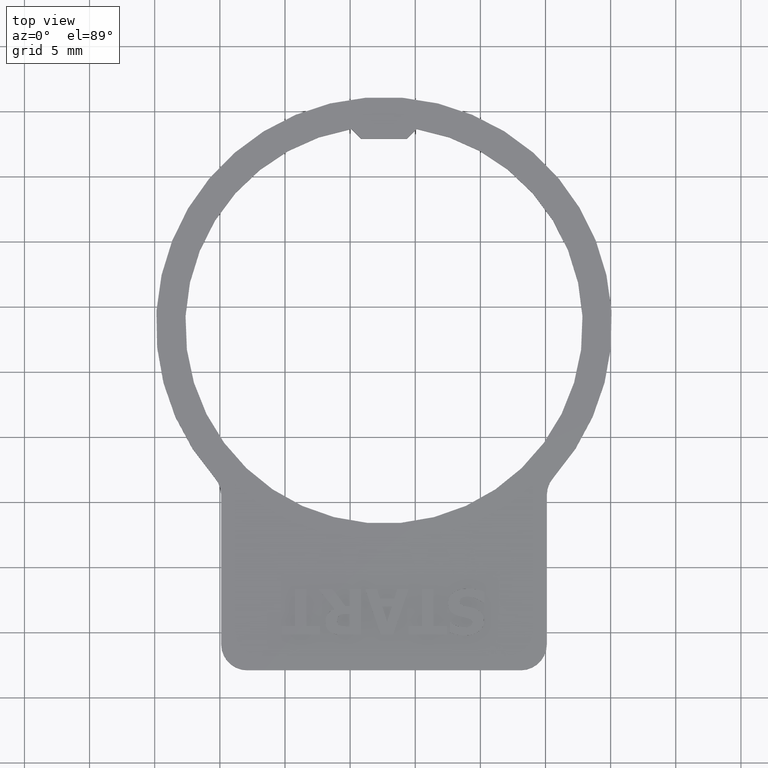
[diagram: clean part render]
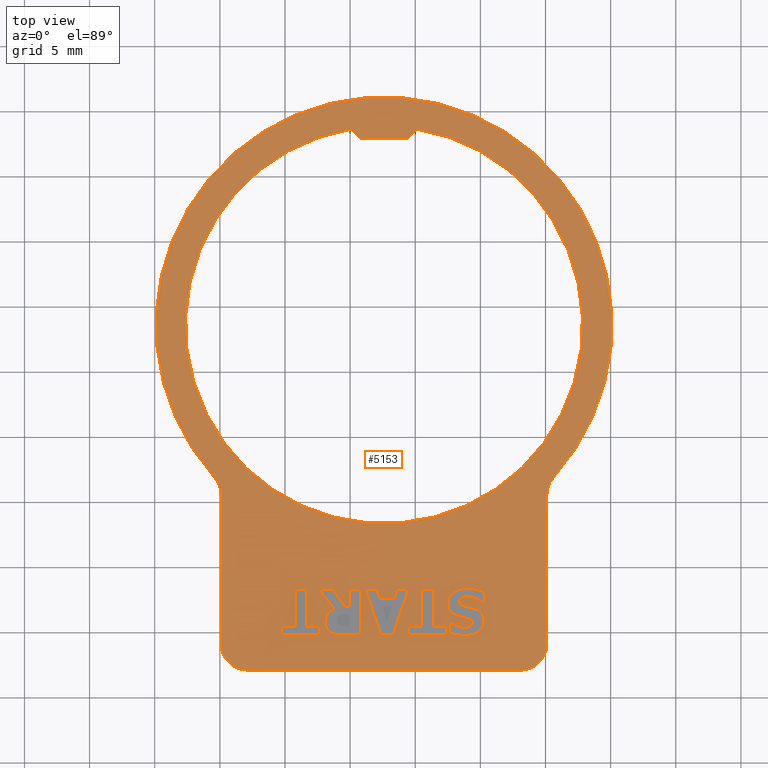
[diagram: same view with one face highlighted and labeled with its STEP entity id]
A machine part, top view. The second image highlights one B-rep face of the part: STEP entity #5153.
In plain terms, the highlighted planar face has unit normal (0, 0, 1).
Its self-contained STEP definition (entity closure, byte-faithful):
#2924=CARTESIAN_POINT('',(-9.185296175363206,-20.187380192846859,0.999999999999996));
#2925=VERTEX_POINT('',#2924);
#2932=CARTESIAN_POINT('',(-9.185296175363206,-16.687380252451501,0.999999999999996));
#2933=VERTEX_POINT('',#2932);
#2934=CARTESIAN_POINT('',(-9.185296175363206,-16.687380252451501,0.999999999999996));
#2935=DIRECTION('',(0.0,-1.0,0.0));
#2936=VECTOR('',#2935,3.499999940395359);
#2937=LINE('',#2934,#2936);
#2938=EDGE_CURVE('',#2933,#2925,#2937,.T.);
#2955=CARTESIAN_POINT('',(-10.592103282685809,-20.187380192846859,0.999999999999996));
#2956=VERTEX_POINT('',#2955);
#2963=CARTESIAN_POINT('',(-9.185296175363206,-20.187380192846859,0.999999999999996));
#2964=DIRECTION('',(-1.0,0.0,0.0));
#2965=VECTOR('',#2964,1.406807107322603);
#2966=LINE('',#2963,#2965);
#2967=EDGE_CURVE('',#2925,#2956,#2966,.T.);
#2983=CARTESIAN_POINT('',(-11.499720771281044,-20.000184085824088,0.999999999999996));
#2984=VERTEX_POINT('',#2983);
#2991=CARTESIAN_POINT('',(-10.592103282685809,-20.187380192846859,0.999999999999996));
#2992=CARTESIAN_POINT('',(-10.884242661827400,-20.187380192846859,0.999999999999996));
#2993=CARTESIAN_POINT('',(-11.315360968910134,-20.113636271898496,0.999999999999996));
#2994=CARTESIAN_POINT('',(-11.499720771281044,-20.000184085824088,0.999999999999996));
#2995=QUASI_UNIFORM_CURVE('',2,(#2991,#2992,#2993,#2994),.UNSPECIFIED.,.F.,.U.);
#2996=EDGE_CURVE('',#2956,#2984,#2995,.T.);
#3012=CARTESIAN_POINT('',(-11.908148641148895,-19.225872915866287,0.999999999999996));
#3013=VERTEX_POINT('',#3012);
#3020=CARTESIAN_POINT('',(-11.499720771281044,-20.000184085824088,0.999999999999988));
#3021=CARTESIAN_POINT('',(-11.686916878303810,-19.881059290445965,0.999999999999988));
#3022=CARTESIAN_POINT('',(-11.908148641148895,-19.509503381052294,0.999999999999988));
#3023=CARTESIAN_POINT('',(-11.908148641148895,-19.225872915866283,0.999999999999988));
#3024=QUASI_UNIFORM_CURVE('',2,(#3020,#3021,#3022,#3023),.UNSPECIFIED.,.F.,.U.);
#3025=EDGE_CURVE('',#2984,#3013,#3024,.T.);
#3041=CARTESIAN_POINT('',(-11.241617047961775,-18.176440194678051,0.999999999999996));
#3042=VERTEX_POINT('',#3041);
#3049=CARTESIAN_POINT('',(-11.908148641148895,-19.225872915866283,0.999999999999996));
#3050=CARTESIAN_POINT('',(-11.908148641148895,-18.825953959954013,0.999999999999996));
#3051=CARTESIAN_POINT('',(-11.545101645710805,-18.323928036574774,0.999999999999996));
#3052=CARTESIAN_POINT('',(-11.241617047961775,-18.176440194678051,0.999999999999996));
#3053=QUASI_UNIFORM_CURVE('',2,(#3049,#3050,#3051,#3052),.UNSPECIFIED.,.F.,.U.);
#3054=EDGE_CURVE('',#3013,#3042,#3053,.T.);
#3066=CARTESIAN_POINT('',(-12.418683478483711,-16.687380252451501,0.999999999999996));
#3067=VERTEX_POINT('',#3066);
#3074=CARTESIAN_POINT('',(-11.241617047961775,-18.176440194678051,0.999999999999996));
#3075=DIRECTION('',(-0.620128665966560,0.784500119596253,0.0));
#3076=VECTOR('',#3075,1.898100338076307);
#3077=LINE('',#3074,#3076);
#3078=EDGE_CURVE('',#3042,#3067,#3077,.T.);
#3156=CARTESIAN_POINT('',(-10.058878008136114,-16.687380252451501,0.999999999999996));
#3157=VERTEX_POINT('',#3156);
#3158=CARTESIAN_POINT('',(-10.058878008136114,-16.687380252451501,0.999999999999996));
#3159=DIRECTION('',(1.0,0.0,0.0));
#3160=VECTOR('',#3159,0.873581832772908);
#3161=LINE('',#3158,#3160);
#3162=EDGE_CURVE('',#3157,#2933,#3161,.T.);
#3180=CARTESIAN_POINT('',(-10.058878008136114,-17.972226259744122,0.999999999999996));
#3181=VERTEX_POINT('',#3180);
#3182=CARTESIAN_POINT('',(-10.058878008136114,-17.972226259744122,0.999999999999996));
#3183=DIRECTION('',(0.0,1.0,0.0));
#3184=VECTOR('',#3183,1.284846007292622);
#3185=LINE('',#3182,#3184);
#3186=EDGE_CURVE('',#3181,#3157,#3185,.T.);
#3204=CARTESIAN_POINT('',(-10.376544129144442,-17.972226259744122,0.999999999999996));
#3205=VERTEX_POINT('',#3204);
#3206=CARTESIAN_POINT('',(-10.376544129144442,-17.972226259744122,0.999999999999996));
#3207=DIRECTION('',(1.0,0.0,0.0));
#3208=VECTOR('',#3207,0.317666121008328);
#3209=LINE('',#3206,#3208);
#3210=EDGE_CURVE('',#3205,#3181,#3209,.T.);
#3228=CARTESIAN_POINT('',(-11.349396624732456,-16.687380252451501,0.999999999999996));
#3229=VERTEX_POINT('',#3228);
#3230=CARTESIAN_POINT('',(-11.349396624732456,-16.687380252451501,0.999999999999996));
#3231=DIRECTION('',(0.603654363102132,-0.797246141356457,0.0));
#3232=VECTOR('',#3231,1.611605175167795);
#3233=LINE('',#3230,#3232);
#3234=EDGE_CURVE('',#3229,#3205,#3233,.T.);
#3252=CARTESIAN_POINT('',(-12.418683478483711,-16.687380252451501,0.999999999999996));
#3253=DIRECTION('',(1.0,0.0,0.0));
#3254=VECTOR('',#3253,1.069286853751255);
#3255=LINE('',#3252,#3254);
#3256=EDGE_CURVE('',#3067,#3229,#3255,.T.);
#3340=CARTESIAN_POINT('',(-5.529299479115545,-19.520848599659736,0.999999999999996));
#3341=VERTEX_POINT('',#3340);
#3348=CARTESIAN_POINT('',(-5.529299479115545,-20.187380192846859,0.999999999999996));
#3349=VERTEX_POINT('',#3348);
#3350=CARTESIAN_POINT('',(-5.529299479115545,-20.187380192846859,0.999999999999996));
#3351=DIRECTION('',(0.0,1.0,0.0));
#3352=VECTOR('',#3351,0.666531593187123);
#3353=LINE('',#3350,#3352);
#3354=EDGE_CURVE('',#3349,#3341,#3353,.T.);
#3371=CARTESIAN_POINT('',(-4.494048281186611,-19.520848599659736,0.999999999999996));
#3372=VERTEX_POINT('',#3371);
#3379=CARTESIAN_POINT('',(-5.529299479115545,-19.520848599659736,0.999999999999996));
#3380=DIRECTION('',(1.0,0.0,0.0));
#3381=VECTOR('',#3380,1.035251197928933);
#3382=LINE('',#3379,#3381);
#3383=EDGE_CURVE('',#3341,#3372,#3382,.T.);
#3395=CARTESIAN_POINT('',(-4.494048281186611,-16.687380252451504,0.999999999999996));
#3396=VERTEX_POINT('',#3395);
#3403=CARTESIAN_POINT('',(-4.494048281186611,-19.520848599659736,0.999999999999996));
#3404=DIRECTION('',(0.0,1.0,0.0));
#3405=VECTOR('',#3404,2.833468347208232);
#3406=LINE('',#3403,#3405);
#3407=EDGE_CURVE('',#3372,#3396,#3406,.T.);
#3419=CARTESIAN_POINT('',(-3.614793839109982,-16.687380252451504,0.999999999999996));
#3420=VERTEX_POINT('',#3419);
#3427=CARTESIAN_POINT('',(-4.494048281186611,-16.687380252451504,0.999999999999996));
#3428=DIRECTION('',(1.0,0.0,0.0));
#3429=VECTOR('',#3428,0.879254442076629);
#3430=LINE('',#3427,#3429);
#3431=EDGE_CURVE('',#3396,#3420,#3430,.T.);
#3444=CARTESIAN_POINT('',(-2.579542641181049,-20.187380192846859,0.999999999999996));
#3445=VERTEX_POINT('',#3444);
#3446=CARTESIAN_POINT('',(-2.579542641181049,-20.187380192846859,0.999999999999996));
#3447=DIRECTION('',(-1.0,0.0,0.0));
#3448=VECTOR('',#3447,2.949756837934497);
#3449=LINE('',#3446,#3448);
#3450=EDGE_CURVE('',#3445,#3349,#3449,.T.);
#3468=CARTESIAN_POINT('',(-2.579542641181049,-19.520848599659736,0.999999999999996));
#3469=VERTEX_POINT('',#3468);
#3470=CARTESIAN_POINT('',(-2.579542641181049,-19.520848599659736,0.999999999999996));
#3471=DIRECTION('',(0.0,-1.0,0.0));
#3472=VECTOR('',#3471,0.666531593187123);
#3473=LINE('',#3470,#3472);
#3474=EDGE_CURVE('',#3469,#3445,#3473,.T.);
#3492=CARTESIAN_POINT('',(-3.614793839109983,-19.520848599659736,0.999999999999996));
#3493=VERTEX_POINT('',#3492);
#3494=CARTESIAN_POINT('',(-3.614793839109983,-19.520848599659736,0.999999999999996));
#3495=DIRECTION('',(1.0,0.0,0.0));
#3496=VECTOR('',#3495,1.035251197928934);
#3497=LINE('',#3494,#3496);
#3498=EDGE_CURVE('',#3493,#3469,#3497,.T.);
#3516=CARTESIAN_POINT('',(-3.614793839109982,-16.687380252451504,0.999999999999996));
#3517=DIRECTION('',(0.0,-1.0,0.0));
#3518=VECTOR('',#3517,2.833468347208232);
#3519=LINE('',#3516,#3518);
#3520=EDGE_CURVE('',#3420,#3493,#3519,.T.);
#3541=CARTESIAN_POINT('',(-6.695020691030045,-20.187380192846859,0.999999999999996));
#3542=VERTEX_POINT('',#3541);
#3549=CARTESIAN_POINT('',(-5.512281651204384,-16.687380252451504,0.999999999999996));
#3550=VERTEX_POINT('',#3549);
#3551=CARTESIAN_POINT('',(-5.512281651204384,-16.687380252451504,0.999999999999996));
#3552=DIRECTION('',(-0.320140459670987,-0.947370089290162,0.0));
#3553=VECTOR('',#3552,3.694437875928518);
#3554=LINE('',#3551,#3553);
#3555=EDGE_CURVE('',#3550,#3542,#3554,.T.);
#3579=CARTESIAN_POINT('',(-7.653691663358756,-20.187380192846859,0.999999999999996));
#3580=VERTEX_POINT('',#3579);
#3587=CARTESIAN_POINT('',(-6.695020691030045,-20.187380192846859,0.999999999999996));
#3588=DIRECTION('',(-1.0,0.0,0.0));
#3589=VECTOR('',#3588,0.958670972328711);
#3590=LINE('',#3587,#3589);
#3591=EDGE_CURVE('',#3542,#3580,#3590,.T.);
#3610=CARTESIAN_POINT('',(-8.836430703184414,-16.687380252451501,0.999999999999996));
#3611=VERTEX_POINT('',#3610);
#3618=CARTESIAN_POINT('',(-7.653691663358756,-20.187380192846859,0.999999999999996));
#3619=DIRECTION('',(-0.320140459670986,0.947370089290162,0.0));
#3620=VECTOR('',#3619,3.694437875928520);
#3621=LINE('',#3618,#3620);
#3622=EDGE_CURVE('',#3580,#3611,#3621,.T.);
#3641=CARTESIAN_POINT('',(-7.931649519241044,-16.687380252451504,0.999999999999996));
#3642=VERTEX_POINT('',#3641);
#3649=CARTESIAN_POINT('',(-8.836430703184414,-16.687380252451501,0.999999999999996));
#3650=DIRECTION('',(1.0,0.0,0.0));
#3651=VECTOR('',#3650,0.904781183943370);
#3652=LINE('',#3649,#3651);
#3653=EDGE_CURVE('',#3611,#3642,#3652,.T.);
#3713=CARTESIAN_POINT('',(-6.391536093281014,-16.687380252451504,0.999999999999996));
#3714=VERTEX_POINT('',#3713);
#3715=CARTESIAN_POINT('',(-6.391536093281014,-16.687380252451504,0.999999999999996));
#3716=DIRECTION('',(1.0,0.0,0.0));
#3717=VECTOR('',#3716,0.879254442076629);
#3718=LINE('',#3715,#3717);
#3719=EDGE_CURVE('',#3714,#3550,#3718,.T.);
#3744=CARTESIAN_POINT('',(-6.612767856126101,-17.402129024720246,0.999999999999996));
#3745=VERTEX_POINT('',#3744);
#3746=CARTESIAN_POINT('',(-6.612767856126101,-17.402129024720246,0.999999999999996));
#3747=DIRECTION('',(0.295683728071131,0.955285890691345,0.0));
#3748=VECTOR('',#3747,0.748204049943074);
#3749=LINE('',#3746,#3748);
#3750=EDGE_CURVE('',#3745,#3714,#3749,.T.);
#3775=CARTESIAN_POINT('',(-7.713254061047818,-17.402129024720246,0.999999999999996));
#3776=VERTEX_POINT('',#3775);
#3777=CARTESIAN_POINT('',(-7.713254061047818,-17.402129024720246,0.999999999999996));
#3778=DIRECTION('',(1.0,0.0,0.0));
#3779=VECTOR('',#3778,1.100486204921717);
#3780=LINE('',#3777,#3779);
#3781=EDGE_CURVE('',#3776,#3745,#3780,.T.);
#3804=CARTESIAN_POINT('',(-7.931649519241044,-16.687380252451504,0.999999999999996));
#3805=DIRECTION('',(0.292218535599020,-0.956351571051339,0.0));
#3806=VECTOR('',#3805,0.747370312240928);
#3807=LINE('',#3804,#3806);
#3808=EDGE_CURVE('',#3642,#3776,#3807,.T.);
#4152=CARTESIAN_POINT('',(-2.352638269032241,-20.014365609083391,0.999999999999996));
#4153=VERTEX_POINT('',#4152);
#4160=CARTESIAN_POINT('',(-1.178408143162162,-20.249778895187781,0.999999999999996));
#4161=VERTEX_POINT('',#4160);
#4162=CARTESIAN_POINT('',(-1.178408143162162,-20.249778895187781,0.999999999999988));
#4163=CARTESIAN_POINT('',(-1.490401654866773,-20.249778895187781,0.999999999999988));
#4164=CARTESIAN_POINT('',(-2.108716068972273,-20.122145185854077,0.999999999999988));
#4165=CARTESIAN_POINT('',(-2.352638269032241,-20.014365609083391,0.999999999999988));
#4166=QUASI_UNIFORM_CURVE('',2,(#4162,#4163,#4164,#4165),.UNSPECIFIED.,.F.,.U.);
#4167=EDGE_CURVE('',#4161,#4153,#4166,.T.);
#4184=CARTESIAN_POINT('',(-2.352638269032241,-19.214527697258845,0.999999999999996));
#4185=VERTEX_POINT('',#4184);
#4192=CARTESIAN_POINT('',(-2.352638269032241,-20.014365609083391,0.999999999999996));
#4193=DIRECTION('',(0.0,1.0,0.0));
#4194=VECTOR('',#4193,0.799837911824547);
#4195=LINE('',#4192,#4194);
#4196=EDGE_CURVE('',#4153,#4185,#4195,.T.);
#4208=CARTESIAN_POINT('',(-2.276058043432018,-19.214527697258845,0.999999999999996));
#4209=VERTEX_POINT('',#4208);
#4216=CARTESIAN_POINT('',(-2.352638269032241,-19.214527697258845,0.999999999999996));
#4217=DIRECTION('',(1.0,0.0,0.0));
#4218=VECTOR('',#4217,0.076580225600223);
#4219=LINE('',#4216,#4218);
#4220=EDGE_CURVE('',#4185,#4209,#4219,.T.);
#4236=CARTESIAN_POINT('',(-1.223789017591924,-19.611610348519260,0.999999999999996));
#4237=VERTEX_POINT('',#4236);
#4244=CARTESIAN_POINT('',(-2.276058043432018,-19.214527697258845,0.999999999999988));
#4245=CARTESIAN_POINT('',(-2.080353022453672,-19.381869671718590,0.999999999999988));
#4246=CARTESIAN_POINT('',(-1.518764701385373,-19.611610348519260,0.999999999999988));
#4247=CARTESIAN_POINT('',(-1.223789017591924,-19.611610348519260,0.999999999999988));
#4248=QUASI_UNIFORM_CURVE('',2,(#4244,#4245,#4246,#4247),.UNSPECIFIED.,.F.,.U.);
#4249=EDGE_CURVE('',#4209,#4237,#4248,.T.);
#4265=CARTESIAN_POINT('',(-0.823870061679651,-19.532193818267174,0.999999999999996));
#4266=VERTEX_POINT('',#4265);
#4273=CARTESIAN_POINT('',(-1.223789017591924,-19.611610348519260,0.999999999999988));
#4274=CARTESIAN_POINT('',(-1.107500526865660,-19.611610348519260,0.999999999999988));
#4275=CARTESIAN_POINT('',(-0.925977029146614,-19.577574692696938,0.999999999999988));
#4276=CARTESIAN_POINT('',(-0.823870061679651,-19.532193818267174,0.999999999999988));
#4277=QUASI_UNIFORM_CURVE('',2,(#4273,#4274,#4275,#4276),.UNSPECIFIED.,.F.,.U.);
#4278=EDGE_CURVE('',#4237,#4266,#4277,.T.);
#4294=CARTESIAN_POINT('',(-0.622492431397584,-19.257072267036747,0.999999999999996));
#4295=VERTEX_POINT('',#4294);
#4302=CARTESIAN_POINT('',(-0.823870061679651,-19.532193818267174,0.999999999999970));
#4303=CARTESIAN_POINT('',(-0.741617226775708,-19.495321857792995,0.999999999999970));
#4304=CARTESIAN_POINT('',(-0.622492431397584,-19.347834015896272,0.999999999999970));
#4305=CARTESIAN_POINT('',(-0.622492431397584,-19.257072267036747,0.999999999999970));
#4306=QUASI_UNIFORM_CURVE('',2,(#4302,#4303,#4304,#4305),.UNSPECIFIED.,.F.,.U.);
#4307=EDGE_CURVE('',#4266,#4295,#4306,.T.);
#4323=CARTESIAN_POINT('',(-1.084810089650779,-18.902534185554234,0.999999999999996));
#4324=VERTEX_POINT('',#4323);
#4331=CARTESIAN_POINT('',(-0.622492431397584,-19.257072267036747,0.999999999999988));
#4332=CARTESIAN_POINT('',(-0.622492431397584,-19.120929643747463,0.999999999999988));
#4333=CARTESIAN_POINT('',(-0.812524843072210,-18.964932887895159,0.999999999999988));
#4334=CARTESIAN_POINT('',(-1.084810089650779,-18.902534185554238,0.999999999999988));
#4335=QUASI_UNIFORM_CURVE('',2,(#4331,#4332,#4333,#4334),.UNSPECIFIED.,.F.,.U.);
#4336=EDGE_CURVE('',#4295,#4324,#4335,.T.);
#4352=CARTESIAN_POINT('',(-1.774032120052782,-18.721010687835186,0.999999999999996));
#4353=VERTEX_POINT('',#4352);
#4360=CARTESIAN_POINT('',(-1.084810089650779,-18.902534185554238,0.999999999999988));
#4361=CARTESIAN_POINT('',(-1.260660978066105,-18.862825920428193,0.999999999999988));
#4362=CARTESIAN_POINT('',(-1.586836013030016,-18.786245694827972,0.999999999999988));
#4363=CARTESIAN_POINT('',(-1.774032120052782,-18.721010687835189,0.999999999999988));
#4364=QUASI_UNIFORM_CURVE('',2,(#4360,#4361,#4362,#4363),.UNSPECIFIED.,.F.,.U.);
#4365=EDGE_CURVE('',#4324,#4353,#4364,.T.);
#4381=CARTESIAN_POINT('',(-2.491617196973386,-17.782193848069497,0.999999999999996));
#4382=VERTEX_POINT('',#4381);
#4389=CARTESIAN_POINT('',(-1.774032120052782,-18.721010687835189,0.999999999999988));
#4390=CARTESIAN_POINT('',(-2.137079115490874,-18.587704369197766,0.999999999999988));
#4391=CARTESIAN_POINT('',(-2.491617196973386,-18.145240843507590,0.999999999999988));
#4392=CARTESIAN_POINT('',(-2.491617196973386,-17.782193848069497,0.999999999999988));
#4393=QUASI_UNIFORM_CURVE('',2,(#4389,#4390,#4391,#4392),.UNSPECIFIED.,.F.,.U.);
#4394=EDGE_CURVE('',#4353,#4382,#4393,.T.);
#4410=CARTESIAN_POINT('',(-0.974194208228235,-16.624981550110579,0.999999999999996));
#4411=VERTEX_POINT('',#4410);
#4418=CARTESIAN_POINT('',(-2.491617196973386,-17.782193848069497,0.999999999999988));
#4419=CARTESIAN_POINT('',(-2.491617196973385,-17.260313792127242,0.999999999999988));
#4420=CARTESIAN_POINT('',(-1.671925152585818,-16.624981550110579,0.999999999999988));
#4421=CARTESIAN_POINT('',(-0.974194208228235,-16.624981550110579,0.999999999999988));
#4422=QUASI_UNIFORM_CURVE('',2,(#4418,#4419,#4420,#4421),.UNSPECIFIED.,.F.,.U.);
#4423=EDGE_CURVE('',#4382,#4411,#4422,.T.);
#4440=CARTESIAN_POINT('',(0.276616143242066,-19.149292690266066,0.999999999999996));
#4441=VERTEX_POINT('',#4440);
#4442=CARTESIAN_POINT('',(0.276616143242066,-19.149292690266066,0.999999999999970));
#4443=CARTESIAN_POINT('',(0.276616143242066,-19.639973395037860,0.999999999999970));
#4444=CARTESIAN_POINT('',(-0.554421119752942,-20.249778895187781,0.999999999999970));
#4445=CARTESIAN_POINT('',(-1.178408143162162,-20.249778895187781,0.999999999999970));
#4446=QUASI_UNIFORM_CURVE('',2,(#4442,#4443,#4444,#4445),.UNSPECIFIED.,.F.,.U.);
#4447=EDGE_CURVE('',#4441,#4161,#4446,.T.);
#4469=CARTESIAN_POINT('',(-0.480677198804579,-18.159422366766890,0.999999999999996));
#4470=VERTEX_POINT('',#4469);
#4471=CARTESIAN_POINT('',(-0.480677198804579,-18.159422366766890,0.999999999999988));
#4472=CARTESIAN_POINT('',(-0.075085633588586,-18.301237599359897,0.999999999999988));
#4473=CARTESIAN_POINT('',(0.276616143242066,-18.786245694827972,0.999999999999988));
#4474=CARTESIAN_POINT('',(0.276616143242066,-19.149292690266066,0.999999999999988));
#4475=QUASI_UNIFORM_CURVE('',2,(#4471,#4472,#4473,#4474),.UNSPECIFIED.,.F.,.U.);
#4476=EDGE_CURVE('',#4470,#4441,#4475,.T.);
#4498=CARTESIAN_POINT('',(-1.243643150154944,-17.966553650440403,0.999999999999996));
#4499=VERTEX_POINT('',#4498);
#4500=CARTESIAN_POINT('',(-1.243643150154944,-17.966553650440403,0.999999999999988));
#4501=CARTESIAN_POINT('',(-1.064955957087759,-18.014770829522028,0.999999999999988));
#4502=CARTESIAN_POINT('',(-0.659364391871765,-18.097023664425969,0.999999999999988));
#4503=CARTESIAN_POINT('',(-0.480677198804579,-18.159422366766890,0.999999999999988));
#4504=QUASI_UNIFORM_CURVE('',2,(#4500,#4501,#4502,#4503),.UNSPECIFIED.,.F.,.U.);
#4505=EDGE_CURVE('',#4499,#4470,#4504,.T.);
#4527=CARTESIAN_POINT('',(-1.592508622333736,-17.631869701520916,0.999999999999996));
#4528=VERTEX_POINT('',#4527);
#4529=CARTESIAN_POINT('',(-1.592508622333736,-17.631869701520912,0.999999999999979));
#4530=CARTESIAN_POINT('',(-1.592508622333736,-17.765176020158336,0.999999999999979));
#4531=CARTESIAN_POINT('',(-1.385458382747949,-17.929681689966223,0.999999999999979));
#4532=CARTESIAN_POINT('',(-1.243643150154944,-17.966553650440403,0.999999999999979));
#4533=QUASI_UNIFORM_CURVE('',2,(#4529,#4530,#4531,#4532),.UNSPECIFIED.,.F.,.U.);
#4534=EDGE_CURVE('',#4528,#4499,#4533,.T.);
#4556=CARTESIAN_POINT('',(-1.374113164140509,-17.331221408423747,0.999999999999996));
#4557=VERTEX_POINT('',#4556);
#4558=CARTESIAN_POINT('',(-1.374113164140508,-17.331221408423744,0.999999999999988));
#4559=CARTESIAN_POINT('',(-1.464874913000031,-17.370929673549785,0.999999999999988));
#4560=CARTESIAN_POINT('',(-1.592508622333736,-17.515581210794650,0.999999999999988));
#4561=CARTESIAN_POINT('',(-1.592508622333736,-17.631869701520912,0.999999999999988));
#4562=QUASI_UNIFORM_CURVE('',2,(#4558,#4559,#4560,#4561),.UNSPECIFIED.,.F.,.U.);
#4563=EDGE_CURVE('',#4557,#4528,#4562,.T.);
#4585=CARTESIAN_POINT('',(-0.977030512880095,-17.263150096779100,0.999999999999996));
#4586=VERTEX_POINT('',#4585);
#4587=CARTESIAN_POINT('',(-0.977030512880095,-17.263150096779100,0.999999999999988));
#4588=CARTESIAN_POINT('',(-1.053610738480318,-17.263150096779100,0.999999999999988));
#4589=CARTESIAN_POINT('',(-1.300369243192146,-17.297185752601422,0.999999999999988));
#4590=CARTESIAN_POINT('',(-1.374113164140508,-17.331221408423744,0.999999999999988));
#4591=QUASI_UNIFORM_CURVE('',2,(#4587,#4588,#4589,#4590),.UNSPECIFIED.,.F.,.U.);
#4592=EDGE_CURVE('',#4586,#4557,#4591,.T.);
#4614=CARTESIAN_POINT('',(0.217053745553004,-17.728304059684156,0.999999999999996));
#4615=VERTEX_POINT('',#4614);
#4616=CARTESIAN_POINT('',(0.217053745553004,-17.728304059684156,0.999999999999988));
#4617=CARTESIAN_POINT('',(-0.046722587069985,-17.504235992187208,0.999999999999988));
#4618=CARTESIAN_POINT('',(-0.679218524434786,-17.263150096779100,0.999999999999988));
#4619=CARTESIAN_POINT('',(-0.977030512880095,-17.263150096779100,0.999999999999988));
#4620=QUASI_UNIFORM_CURVE('',2,(#4616,#4617,#4618,#4619),.UNSPECIFIED.,.F.,.U.);
#4621=EDGE_CURVE('',#4615,#4586,#4620,.T.);
#4639=CARTESIAN_POINT('',(0.296470275805087,-17.728304059684156,0.999999999999996));
#4640=VERTEX_POINT('',#4639);
#4641=CARTESIAN_POINT('',(0.296470275805087,-17.728304059684156,0.999999999999996));
#4642=DIRECTION('',(-1.0,0.0,0.0));
#4643=VECTOR('',#4642,0.079416530252083);
#4644=LINE('',#4641,#4643);
#4645=EDGE_CURVE('',#4640,#4615,#4644,.T.);
#4663=CARTESIAN_POINT('',(0.296470275805087,-16.894430492037287,0.999999999999996));
#4664=VERTEX_POINT('',#4663);
#4665=CARTESIAN_POINT('',(0.296470275805087,-16.894430492037287,0.999999999999996));
#4666=DIRECTION('',(0.0,-1.0,0.0));
#4667=VECTOR('',#4666,0.833873567646869);
#4668=LINE('',#4665,#4667);
#4669=EDGE_CURVE('',#4664,#4640,#4668,.T.);
#4691=CARTESIAN_POINT('',(-0.974194208228235,-16.624981550110579,0.999999999999988));
#4692=CARTESIAN_POINT('',(-0.571438947664102,-16.624981550110579,0.999999999999988));
#4693=CARTESIAN_POINT('',(0.035530247833958,-16.780978305962886,0.999999999999988));
#4694=CARTESIAN_POINT('',(0.296470275805087,-16.894430492037287,0.999999999999988));
#4695=QUASI_UNIFORM_CURVE('',2,(#4691,#4692,#4693,#4694),.UNSPECIFIED.,.F.,.U.);
#4696=EDGE_CURVE('',#4411,#4664,#4695,.T.);
#4717=CARTESIAN_POINT('',(-13.351827708945683,-19.520848599659736,0.999999999999996));
#4718=VERTEX_POINT('',#4717);
#4725=CARTESIAN_POINT('',(-13.351827708945683,-16.687380252451501,0.999999999999996));
#4726=VERTEX_POINT('',#4725);
#4727=CARTESIAN_POINT('',(-13.351827708945683,-16.687380252451501,0.999999999999996));
#4728=DIRECTION('',(0.0,-1.0,0.0));
#4729=VECTOR('',#4728,2.833468347208235);
#4730=LINE('',#4727,#4729);
#4731=EDGE_CURVE('',#4726,#4718,#4730,.T.);
#4755=CARTESIAN_POINT('',(-12.316576511016750,-19.520848599659736,0.999999999999996));
#4756=VERTEX_POINT('',#4755);
#4763=CARTESIAN_POINT('',(-13.351827708945683,-19.520848599659736,0.999999999999996));
#4764=DIRECTION('',(1.0,0.0,0.0));
#4765=VECTOR('',#4764,1.035251197928933);
#4766=LINE('',#4763,#4765);
#4767=EDGE_CURVE('',#4718,#4756,#4766,.T.);
#4786=CARTESIAN_POINT('',(-12.316576511016750,-20.187380192846859,0.999999999999996));
#4787=VERTEX_POINT('',#4786);
#4794=CARTESIAN_POINT('',(-12.316576511016750,-19.520848599659736,0.999999999999996));
#4795=DIRECTION('',(0.0,-1.0,0.0));
#4796=VECTOR('',#4795,0.666531593187123);
#4797=LINE('',#4794,#4796);
#4798=EDGE_CURVE('',#4756,#4787,#4797,.T.);
#4817=CARTESIAN_POINT('',(-15.266333348951244,-20.187380192846859,0.999999999999996));
#4818=VERTEX_POINT('',#4817);
#4825=CARTESIAN_POINT('',(-12.316576511016750,-20.187380192846859,0.999999999999996));
#4826=DIRECTION('',(-1.0,0.0,0.0));
#4827=VECTOR('',#4826,2.949756837934494);
#4828=LINE('',#4825,#4827);
#4829=EDGE_CURVE('',#4787,#4818,#4828,.T.);
#4849=CARTESIAN_POINT('',(-14.231082151022312,-16.687380252451501,0.999999999999996));
#4850=VERTEX_POINT('',#4849);
#4851=CARTESIAN_POINT('',(-14.231082151022312,-16.687380252451501,0.999999999999996));
#4852=DIRECTION('',(1.0,0.0,0.0));
#4853=VECTOR('',#4852,0.879254442076629);
#4854=LINE('',#4851,#4853);
#4855=EDGE_CURVE('',#4850,#4726,#4854,.T.);
#4880=CARTESIAN_POINT('',(-14.231082151022312,-19.520848599659736,0.999999999999996));
#4881=VERTEX_POINT('',#4880);
#4882=CARTESIAN_POINT('',(-14.231082151022312,-19.520848599659736,0.999999999999996));
#4883=DIRECTION('',(0.0,1.0,0.0));
#4884=VECTOR('',#4883,2.833468347208235);
#4885=LINE('',#4882,#4884);
#4886=EDGE_CURVE('',#4881,#4850,#4885,.T.);
#4911=CARTESIAN_POINT('',(-15.266333348951244,-19.520848599659736,0.999999999999996));
#4912=VERTEX_POINT('',#4911);
#4913=CARTESIAN_POINT('',(-15.266333348951244,-19.520848599659736,0.999999999999996));
#4914=DIRECTION('',(1.0,0.0,0.0));
#4915=VECTOR('',#4914,1.035251197928933);
#4916=LINE('',#4913,#4915);
#4917=EDGE_CURVE('',#4912,#4881,#4916,.T.);
#4940=CARTESIAN_POINT('',(-15.266333348951244,-20.187380192846859,0.999999999999996));
#4941=DIRECTION('',(0.0,1.0,0.0));
#4942=VECTOR('',#4941,0.666531593187123);
#4943=LINE('',#4940,#4942);
#4944=EDGE_CURVE('',#4818,#4912,#4943,.T.);
#4977=CARTESIAN_POINT('',(-7.398424810307672,-2.851746310758943,1.0));
#4978=DIRECTION('',(0.0,0.0,1.0));
#4979=DIRECTION('',(1.0,0.0,0.0));
#4980=AXIS2_PLACEMENT_3D('',#4977,#4978,#4979);
#4981=PLANE('',#4980);
#4982=CARTESIAN_POINT('',(-19.898424810307670,-20.893851612925708,1.0));
#4983=VERTEX_POINT('',#4982);
#4984=CARTESIAN_POINT('',(-19.898424810307670,-9.432256423331003,1.0));
#4985=VERTEX_POINT('',#4984);
#4986=CARTESIAN_POINT('',(-19.898424810307670,-20.893851612925708,1.0));
#4987=DIRECTION('',(0.0,1.0,0.0));
#4988=VECTOR('',#4987,11.461595189594705);
#4989=LINE('',#4986,#4988);
#4990=EDGE_CURVE('',#4983,#4985,#4989,.T.);
#4991=ORIENTED_EDGE('',*,*,#4990,.F.);
#4992=CARTESIAN_POINT('',(-17.898424810307670,-22.893851612925708,1.0));
#4993=VERTEX_POINT('',#4992);
#4994=CARTESIAN_POINT('',(-17.898424810307670,-20.893851612925708,1.0));
#4995=DIRECTION('',(0.0,0.0,-1.0));
#4996=DIRECTION('',(1.0,0.0,0.0));
#4997=AXIS2_PLACEMENT_3D('',#4994,#4995,#4996);
#4998=CIRCLE('',#4997,1.999999999999997);
#4999=EDGE_CURVE('',#4993,#4983,#4998,.T.);
#5000=ORIENTED_EDGE('',*,*,#4999,.F.);
#5001=CARTESIAN_POINT('',(3.101575189692329,-22.893851612925708,1.0));
#5002=VERTEX_POINT('',#5001);
#5003=CARTESIAN_POINT('',(3.101575189692329,-22.893851612925708,1.0));
#5004=DIRECTION('',(-1.0,0.0,0.0));
#5005=VECTOR('',#5004,21.0);
#5006=LINE('',#5003,#5005);
#5007=EDGE_CURVE('',#5002,#4993,#5006,.T.);
#5008=ORIENTED_EDGE('',*,*,#5007,.F.);
#5009=CARTESIAN_POINT('',(5.101575189692328,-20.893851612925705,1.0));
#5010=VERTEX_POINT('',#5009);
#5011=CARTESIAN_POINT('',(3.101575189692329,-20.893851612925705,1.0));
#5012=DIRECTION('',(0.0,0.0,-1.0));
#5013=DIRECTION('',(0.0,1.0,0.0));
#5014=AXIS2_PLACEMENT_3D('',#5011,#5012,#5013);
#5015=CIRCLE('',#5014,2.000000000000004);
#5016=EDGE_CURVE('',#5010,#5002,#5015,.T.);
#5017=ORIENTED_EDGE('',*,*,#5016,.F.);
#5018=CARTESIAN_POINT('',(5.101575189692324,-9.432256423331014,1.0));
#5019=VERTEX_POINT('',#5018);
#5020=CARTESIAN_POINT('',(5.101575189692324,-9.432256423331014,1.0));
#5021=DIRECTION('',(0.0,-1.0,0.0));
#5022=VECTOR('',#5021,11.461595189594691);
#5023=LINE('',#5020,#5022);
#5024=EDGE_CURVE('',#5019,#5010,#5023,.T.);
#5025=ORIENTED_EDGE('',*,*,#5024,.F.);
#5026=CARTESIAN_POINT('',(5.614395702512835,-8.094984135084314,1.0));
#5027=VERTEX_POINT('',#5026);
#5028=CARTESIAN_POINT('',(7.101575189692322,-9.432256423331012,1.0));
#5029=DIRECTION('',(0.0,0.0,1.000000000000000));
#5030=DIRECTION('',(-0.743589743589743,0.668636144123349,0.0));
#5031=AXIS2_PLACEMENT_3D('',#5028,#5029,#5030);
#5032=CIRCLE('',#5031,1.999999999999971);
#5033=EDGE_CURVE('',#5027,#5019,#5032,.T.);
#5034=ORIENTED_EDGE('',*,*,#5033,.F.);
#5035=CARTESIAN_POINT('',(-20.411245323128185,-8.094984135084308,1.0));
#5036=VERTEX_POINT('',#5035);
#5037=CARTESIAN_POINT('',(-7.398424810307668,3.606148387074293,1.0));
#5038=DIRECTION('',(0.0,0.0,-1.0));
#5039=DIRECTION('',(-0.743589743589743,0.668636144123349,0.0));
#5040=AXIS2_PLACEMENT_3D('',#5037,#5038,#5039);
#5041=CIRCLE('',#5040,17.500000000000004);
#5042=EDGE_CURVE('',#5036,#5027,#5041,.T.);
#5043=ORIENTED_EDGE('',*,*,#5042,.F.);
#5044=CARTESIAN_POINT('',(-21.898424810307667,-9.432256423331003,1.0));
#5045=DIRECTION('',(0.0,0.0,1.0));
#5046=DIRECTION('',(1.0,0.0,0.0));
#5047=AXIS2_PLACEMENT_3D('',#5044,#5045,#5046);
#5048=CIRCLE('',#5047,2.000000000000042);
#5049=EDGE_CURVE('',#4985,#5036,#5048,.T.);
#5050=ORIENTED_EDGE('',*,*,#5049,.F.);
#5051=EDGE_LOOP('',(#4991,#5000,#5008,#5017,#5025,#5034,#5043,#5050));
#5052=FACE_OUTER_BOUND('',#5051,.T.);
#5053=CARTESIAN_POINT('',(-9.898424810307674,18.649834770404677,1.0));
#5054=VERTEX_POINT('',#5053);
#5055=CARTESIAN_POINT('',(-9.148424810307672,17.899834770404681,1.0));
#5056=VERTEX_POINT('',#5055);
#5057=CARTESIAN_POINT('',(-9.898424810307674,18.649834770404677,1.0));
#5058=DIRECTION('',(0.707106781186550,-0.707106781186545,0.0));
#5059=VECTOR('',#5058,1.060660171779820);
#5060=LINE('',#5057,#5059);
#5061=EDGE_CURVE('',#5054,#5056,#5060,.T.);
#5062=ORIENTED_EDGE('',*,*,#5061,.T.);
#5063=CARTESIAN_POINT('',(-5.648424810307672,17.899834770404681,1.0));
#5064=VERTEX_POINT('',#5063);
#5065=CARTESIAN_POINT('',(-9.148424810307672,17.899834770404681,1.0));
#5066=DIRECTION('',(1.0,0.0,0.0));
#5067=VECTOR('',#5066,3.500000000000000);
#5068=LINE('',#5065,#5067);
#5069=EDGE_CURVE('',#5056,#5064,#5068,.T.);
#5070=ORIENTED_EDGE('',*,*,#5069,.T.);
#5071=CARTESIAN_POINT('',(-4.898424810307673,18.649834770404681,1.0));
#5072=VERTEX_POINT('',#5071);
#5073=CARTESIAN_POINT('',(-5.648424810307672,17.899834770404681,1.0));
#5074=DIRECTION('',(0.707106781186547,0.707106781186548,0.0));
#5075=VECTOR('',#5074,1.060660171779821);
#5076=LINE('',#5073,#5075);
#5077=EDGE_CURVE('',#5064,#5072,#5076,.T.);
#5078=ORIENTED_EDGE('',*,*,#5077,.T.);
#5079=CARTESIAN_POINT('',(-7.398424810307668,3.606148387074293,1.0));
#5080=DIRECTION('',(0.0,0.0,-1.000000000000000));
#5081=DIRECTION('',(-0.163934426229508,0.986471238251173,0.0));
#5082=AXIS2_PLACEMENT_3D('',#5079,#5080,#5081);
#5083=CIRCLE('',#5082,15.250000000000000);
#5084=EDGE_CURVE('',#5072,#5054,#5083,.T.);
#5085=ORIENTED_EDGE('',*,*,#5084,.T.);
#5086=EDGE_LOOP('',(#5062,#5070,#5078,#5085));
#5087=FACE_BOUND('',#5086,.T.);
#5088=ORIENTED_EDGE('',*,*,#4731,.T.);
#5089=ORIENTED_EDGE('',*,*,#4767,.T.);
#5090=ORIENTED_EDGE('',*,*,#4798,.T.);
#5091=ORIENTED_EDGE('',*,*,#4829,.T.);
#5092=ORIENTED_EDGE('',*,*,#4944,.T.);
#5093=ORIENTED_EDGE('',*,*,#4917,.T.);
#5094=ORIENTED_EDGE('',*,*,#4886,.T.);
#5095=ORIENTED_EDGE('',*,*,#4855,.T.);
#5096=EDGE_LOOP('',(#5088,#5089,#5090,#5091,#5092,#5093,#5094,#5095));
#5097=FACE_BOUND('',#5096,.T.);
#5098=ORIENTED_EDGE('',*,*,#4167,.T.);
#5099=ORIENTED_EDGE('',*,*,#4196,.T.);
#5100=ORIENTED_EDGE('',*,*,#4220,.T.);
#5101=ORIENTED_EDGE('',*,*,#4249,.T.);
#5102=ORIENTED_EDGE('',*,*,#4278,.T.);
#5103=ORIENTED_EDGE('',*,*,#4307,.T.);
#5104=ORIENTED_EDGE('',*,*,#4336,.T.);
#5105=ORIENTED_EDGE('',*,*,#4365,.T.);
#5106=ORIENTED_EDGE('',*,*,#4394,.T.);
#5107=ORIENTED_EDGE('',*,*,#4423,.T.);
#5108=ORIENTED_EDGE('',*,*,#4696,.T.);
#5109=ORIENTED_EDGE('',*,*,#4669,.T.);
#5110=ORIENTED_EDGE('',*,*,#4645,.T.);
#5111=ORIENTED_EDGE('',*,*,#4621,.T.);
#5112=ORIENTED_EDGE('',*,*,#4592,.T.);
#5113=ORIENTED_EDGE('',*,*,#4563,.T.);
#5114=ORIENTED_EDGE('',*,*,#4534,.T.);
#5115=ORIENTED_EDGE('',*,*,#4505,.T.);
#5116=ORIENTED_EDGE('',*,*,#4476,.T.);
#5117=ORIENTED_EDGE('',*,*,#4447,.T.);
#5118=EDGE_LOOP('',(#5098,#5099,#5100,#5101,#5102,#5103,#5104,#5105,#5106,#5107,#5108,#5109,#5110,#5111,#5112,#5113,#5114,#5115,#5116,#5117));
#5119=FACE_BOUND('',#5118,.T.);
#5120=ORIENTED_EDGE('',*,*,#3555,.T.);
#5121=ORIENTED_EDGE('',*,*,#3591,.T.);
#5122=ORIENTED_EDGE('',*,*,#3622,.T.);
#5123=ORIENTED_EDGE('',*,*,#3653,.T.);
#5124=ORIENTED_EDGE('',*,*,#3808,.T.);
#5125=ORIENTED_EDGE('',*,*,#3781,.T.);
#5126=ORIENTED_EDGE('',*,*,#3750,.T.);
#5127=ORIENTED_EDGE('',*,*,#3719,.T.);
#5128=EDGE_LOOP('',(#5120,#5121,#5122,#5123,#5124,#5125,#5126,#5127));
#5129=FACE_BOUND('',#5128,.T.);
#5130=ORIENTED_EDGE('',*,*,#3354,.T.);
#5131=ORIENTED_EDGE('',*,*,#3383,.T.);
#5132=ORIENTED_EDGE('',*,*,#3407,.T.);
#5133=ORIENTED_EDGE('',*,*,#3431,.T.);
#5134=ORIENTED_EDGE('',*,*,#3520,.T.);
#5135=ORIENTED_EDGE('',*,*,#3498,.T.);
#5136=ORIENTED_EDGE('',*,*,#3474,.T.);
#5137=ORIENTED_EDGE('',*,*,#3450,.T.);
#5138=EDGE_LOOP('',(#5130,#5131,#5132,#5133,#5134,#5135,#5136,#5137));
#5139=FACE_BOUND('',#5138,.T.);
#5140=ORIENTED_EDGE('',*,*,#2938,.T.);
#5141=ORIENTED_EDGE('',*,*,#2967,.T.);
#5142=ORIENTED_EDGE('',*,*,#2996,.T.);
#5143=ORIENTED_EDGE('',*,*,#3025,.T.);
#5144=ORIENTED_EDGE('',*,*,#3054,.T.);
#5145=ORIENTED_EDGE('',*,*,#3078,.T.);
#5146=ORIENTED_EDGE('',*,*,#3256,.T.);
#5147=ORIENTED_EDGE('',*,*,#3234,.T.);
#5148=ORIENTED_EDGE('',*,*,#3210,.T.);
#5149=ORIENTED_EDGE('',*,*,#3186,.T.);
#5150=ORIENTED_EDGE('',*,*,#3162,.T.);
#5151=EDGE_LOOP('',(#5140,#5141,#5142,#5143,#5144,#5145,#5146,#5147,#5148,#5149,#5150));
#5152=FACE_BOUND('',#5151,.T.);
#5153=ADVANCED_FACE('',(#5052,#5087,#5097,#5119,#5129,#5139,#5152),#4981,.T.);